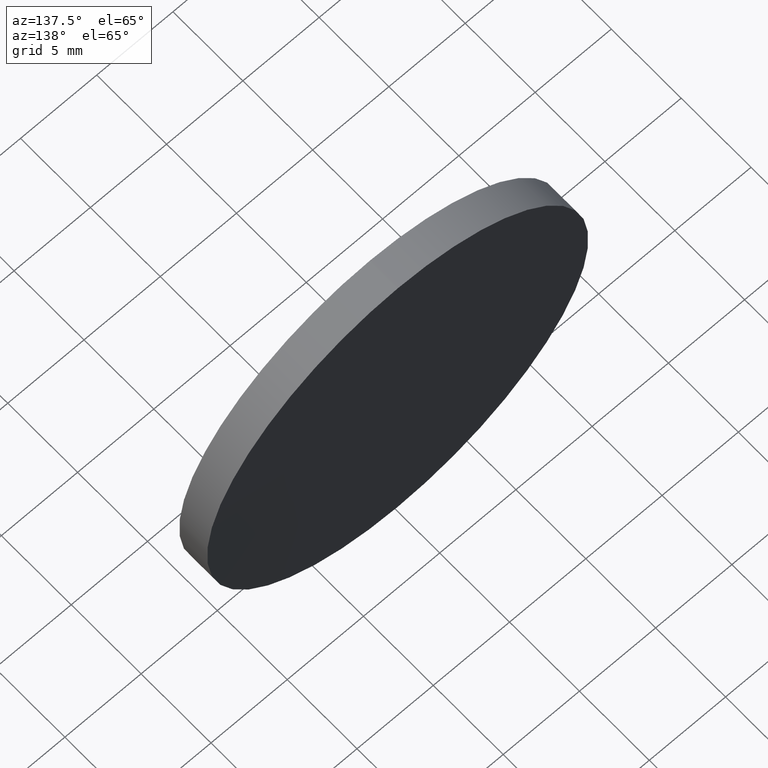
[diagram: clean part render]
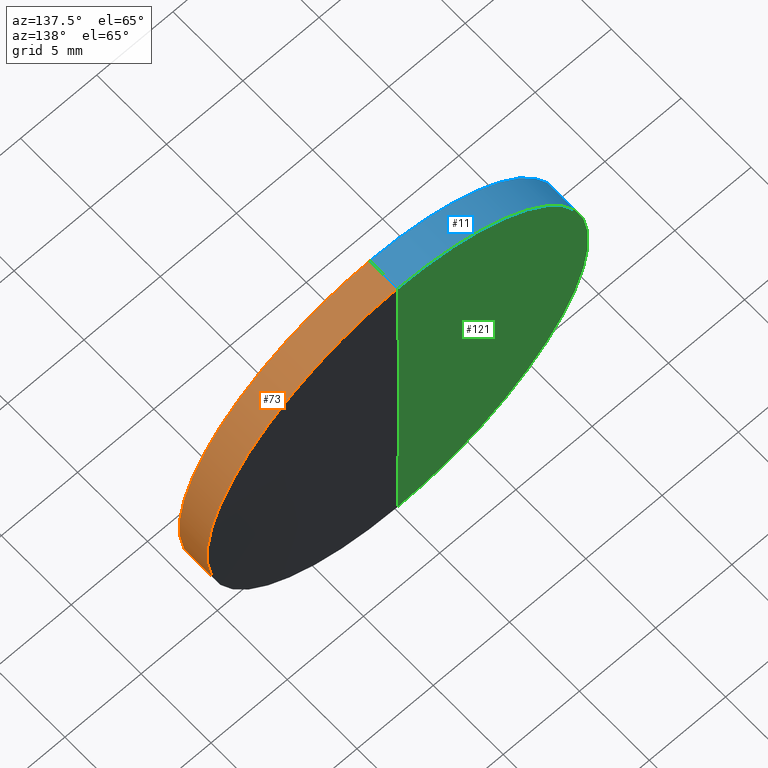
[diagram: same view with three faces highlighted in distinct colors, each labeled with its STEP entity id]
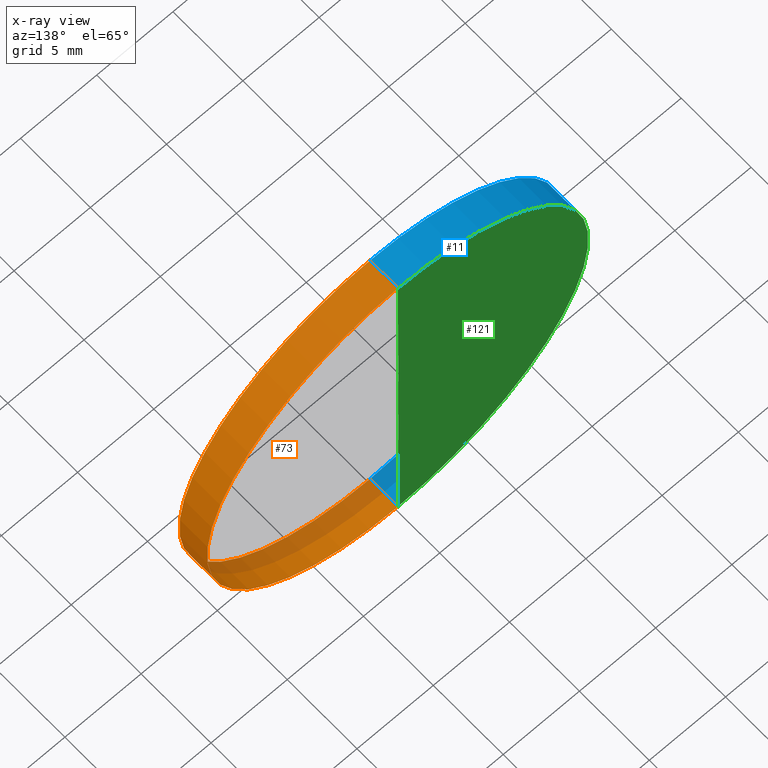
[diagram: x-ray of the same camera — body ghosted, the three highlighted faces saturated]
A machine part, auxiliary view with three faces highlighted in distinct colors.
The next image is the same camera in x-ray (body ghosted, the three faces saturated) — at least one of them is partly hidden behind the body in this view.
Their STEP definitions:

[orange] entity #73 — the highlighted cylindrical surface (partial cylindrical patch) has radius 12.5 mm, axis along (-0, 1, -0).
#1 = DIRECTION ( 'NONE',  ( 0.000000000000000000, 0.000000000000000000, 1.000000000000000000 ) ) ;
#2 = ORIENTED_EDGE ( 'NONE', *, *, #197, .F. ) ;
#6 = LINE ( 'NONE', #47, #173 ) ;
#8 = FACE_OUTER_BOUND ( 'NONE', #63, .T. ) ;
#9 = CARTESIAN_POINT ( 'NONE',  ( 0.000000000000000000, 2.000000000000000000, 12.49999999999517009 ) ) ;
#31 = CIRCLE ( 'NONE', #102, 12.50000000000000000 ) ;
#39 = DIRECTION ( 'NONE',  ( -0.000000000000000000, 1.000000000000000000, -0.000000000000000000 ) ) ;
#41 = CARTESIAN_POINT ( 'NONE',  ( 0.000000000000000000, 2.031000000000000139, 0.000000000000000000 ) ) ;
#43 = ORIENTED_EDGE ( 'NONE', *, *, #165, .F. ) ;
#47 = CARTESIAN_POINT ( 'NONE',  ( 1.530808498934191521E-15, 2.031000000000000139, -12.50000000000000000 ) ) ;
#49 = CIRCLE ( 'NONE', #201, 12.50000000000000000 ) ;
#55 = VERTEX_POINT ( 'NONE', #179 ) ;
#57 = LINE ( 'NONE', #182, #185 ) ;
#63 = EDGE_LOOP ( 'NONE', ( #74, #192, #2, #43 ) ) ;
#67 = DIRECTION ( 'NONE',  ( -0.000000000000000000, 1.000000000000000000, -0.000000000000000000 ) ) ;
#73 = ADVANCED_FACE ( 'NONE', ( #8 ), #151, .T. ) ;
#74 = ORIENTED_EDGE ( 'NONE', *, *, #172, .T. ) ;
#85 = VERTEX_POINT ( 'NONE', #147 ) ;
#102 = AXIS2_PLACEMENT_3D ( 'NONE', #125, #200, #1 ) ;
#105 = DIRECTION ( 'NONE',  ( 0.000000000000000000, 0.000000000000000000, 1.000000000000000000 ) ) ;
#108 = VERTEX_POINT ( 'NONE', #9 ) ;
#111 = EDGE_CURVE ( 'NONE', #85, #164, #6, .T. ) ;
#125 = CARTESIAN_POINT ( 'NONE',  ( 0.000000000000000000, 1.999999999999998224, 0.000000000000000000 ) ) ;
#127 = DIRECTION ( 'NONE',  ( -0.000000000000000000, 1.000000000000000000, -0.000000000000000000 ) ) ;
#143 = AXIS2_PLACEMENT_3D ( 'NONE', #41, #191, #105 ) ;
#147 = CARTESIAN_POINT ( 'NONE',  ( 1.530808498934191521E-15, -1.734723475976807094E-15, -12.50000000000000000 ) ) ;
#151 = CYLINDRICAL_SURFACE ( 'NONE', #143, 12.50000000000000000 ) ;
#159 = CARTESIAN_POINT ( 'NONE',  ( 0.000000000000000000, -1.734723475976807094E-15, 0.000000000000000000 ) ) ;
#164 = VERTEX_POINT ( 'NONE', #168 ) ;
#165 = EDGE_CURVE ( 'NONE', #55, #108, #57, .T. ) ;
#168 = CARTESIAN_POINT ( 'NONE',  ( 1.530808498933599678E-15, 2.000000000000000000, -12.49999999999517009 ) ) ;
#172 = EDGE_CURVE ( 'NONE', #55, #85, #49, .T. ) ;
#173 = VECTOR ( 'NONE', #67, 1000.000000000000000 ) ;
#179 = CARTESIAN_POINT ( 'NONE',  ( 0.000000000000000000, -1.734723475976807094E-15, 12.50000000000000000 ) ) ;
#182 = CARTESIAN_POINT ( 'NONE',  ( 0.000000000000000000, 2.031000000000000139, 12.50000000000000000 ) ) ;
#185 = VECTOR ( 'NONE', #39, 1000.000000000000000 ) ;
#188 = DIRECTION ( 'NONE',  ( 0.000000000000000000, 0.000000000000000000, 1.000000000000000000 ) ) ;
#191 = DIRECTION ( 'NONE',  ( -0.000000000000000000, 1.000000000000000000, -0.000000000000000000 ) ) ;
#192 = ORIENTED_EDGE ( 'NONE', *, *, #111, .T. ) ;
#197 = EDGE_CURVE ( 'NONE', #108, #164, #31, .T. ) ;
#200 = DIRECTION ( 'NONE',  ( -0.000000000000000000, 1.000000000000000000, -0.000000000000000000 ) ) ;
#201 = AXIS2_PLACEMENT_3D ( 'NONE', #159, #127, #188 ) ;

[blue] entity #11 — the highlighted cylindrical surface (partial cylindrical patch) has radius 12.5 mm, axis along (-0, 1, -0).
#3 = ORIENTED_EDGE ( 'NONE', *, *, #38, .T. ) ;
#4 = DIRECTION ( 'NONE',  ( 0.000000000000000000, 0.000000000000000000, 1.000000000000000000 ) ) ;
#6 = LINE ( 'NONE', #47, #173 ) ;
#9 = CARTESIAN_POINT ( 'NONE',  ( 0.000000000000000000, 2.000000000000000000, 12.49999999999517009 ) ) ;
#11 = ADVANCED_FACE ( 'NONE', ( #26 ), #120, .T. ) ;
#17 = DIRECTION ( 'NONE',  ( -0.000000000000000000, 1.000000000000000000, -0.000000000000000000 ) ) ;
#24 = CARTESIAN_POINT ( 'NONE',  ( 0.000000000000000000, -1.734723475976807094E-15, 0.000000000000000000 ) ) ;
#26 = FACE_OUTER_BOUND ( 'NONE', #54, .T. ) ;
#38 = EDGE_CURVE ( 'NONE', #85, #55, #142, .T. ) ;
#39 = DIRECTION ( 'NONE',  ( -0.000000000000000000, 1.000000000000000000, -0.000000000000000000 ) ) ;
#42 = DIRECTION ( 'NONE',  ( 0.000000000000000000, 0.000000000000000000, 1.000000000000000000 ) ) ;
#47 = CARTESIAN_POINT ( 'NONE',  ( 1.530808498934191521E-15, 2.031000000000000139, -12.50000000000000000 ) ) ;
#54 = EDGE_LOOP ( 'NONE', ( #149, #3, #81, #56 ) ) ;
#55 = VERTEX_POINT ( 'NONE', #179 ) ;
#56 = ORIENTED_EDGE ( 'NONE', *, *, #187, .F. ) ;
#57 = LINE ( 'NONE', #182, #185 ) ;
#67 = DIRECTION ( 'NONE',  ( -0.000000000000000000, 1.000000000000000000, -0.000000000000000000 ) ) ;
#80 = AXIS2_PLACEMENT_3D ( 'NONE', #144, #17, #4 ) ;
#81 = ORIENTED_EDGE ( 'NONE', *, *, #165, .T. ) ;
#84 = DIRECTION ( 'NONE',  ( -0.000000000000000000, 1.000000000000000000, -0.000000000000000000 ) ) ;
#85 = VERTEX_POINT ( 'NONE', #147 ) ;
#87 = DIRECTION ( 'NONE',  ( 0.000000000000000000, 0.000000000000000000, 1.000000000000000000 ) ) ;
#108 = VERTEX_POINT ( 'NONE', #9 ) ;
#111 = EDGE_CURVE ( 'NONE', #85, #164, #6, .T. ) ;
#117 = DIRECTION ( 'NONE',  ( -0.000000000000000000, 1.000000000000000000, -0.000000000000000000 ) ) ;
#119 = CARTESIAN_POINT ( 'NONE',  ( 0.000000000000000000, 2.031000000000000139, 0.000000000000000000 ) ) ;
#120 = CYLINDRICAL_SURFACE ( 'NONE', #193, 12.50000000000000000 ) ;
#142 = CIRCLE ( 'NONE', #155, 12.50000000000000000 ) ;
#144 = CARTESIAN_POINT ( 'NONE',  ( 0.000000000000000000, 1.999999999999998224, 0.000000000000000000 ) ) ;
#147 = CARTESIAN_POINT ( 'NONE',  ( 1.530808498934191521E-15, -1.734723475976807094E-15, -12.50000000000000000 ) ) ;
#149 = ORIENTED_EDGE ( 'NONE', *, *, #111, .F. ) ;
#155 = AXIS2_PLACEMENT_3D ( 'NONE', #24, #84, #87 ) ;
#156 = CIRCLE ( 'NONE', #80, 12.50000000000000000 ) ;
#164 = VERTEX_POINT ( 'NONE', #168 ) ;
#165 = EDGE_CURVE ( 'NONE', #55, #108, #57, .T. ) ;
#168 = CARTESIAN_POINT ( 'NONE',  ( 1.530808498933599678E-15, 2.000000000000000000, -12.49999999999517009 ) ) ;
#173 = VECTOR ( 'NONE', #67, 1000.000000000000000 ) ;
#179 = CARTESIAN_POINT ( 'NONE',  ( 0.000000000000000000, -1.734723475976807094E-15, 12.50000000000000000 ) ) ;
#182 = CARTESIAN_POINT ( 'NONE',  ( 0.000000000000000000, 2.031000000000000139, 12.50000000000000000 ) ) ;
#185 = VECTOR ( 'NONE', #39, 1000.000000000000000 ) ;
#187 = EDGE_CURVE ( 'NONE', #164, #108, #156, .T. ) ;
#193 = AXIS2_PLACEMENT_3D ( 'NONE', #119, #117, #42 ) ;

[green] entity #121 — the highlighted toroidal blend (fillet) surface has major radius 3.0459 mm and minor (blend) radius 1292 mm.
#4 = DIRECTION ( 'NONE',  ( 0.000000000000000000, 0.000000000000000000, 1.000000000000000000 ) ) ;
#5 = CARTESIAN_POINT ( 'NONE',  ( 0.000000000000000000, -1289.965409658435419, 3.045887344046879885 ) ) ;
#9 = CARTESIAN_POINT ( 'NONE',  ( 0.000000000000000000, 2.000000000000000000, 12.49999999999517009 ) ) ;
#17 = DIRECTION ( 'NONE',  ( -0.000000000000000000, 1.000000000000000000, -0.000000000000000000 ) ) ;
#21 = AXIS2_PLACEMENT_3D ( 'NONE', #90, #150, #30 ) ;
#30 = DIRECTION ( 'NONE',  ( 1.224646799147353207E-16, 0.000000000000000000, -1.000000000000000000 ) ) ;
#34 = EDGE_CURVE ( 'NONE', #164, #167, #112, .T. ) ;
#44 = DIRECTION ( 'NONE',  ( -0.000000000000000000, 1.000000000000000000, -0.000000000000000000 ) ) ;
#58 = CIRCLE ( 'NONE', #113, 1292.000000000000000 ) ;
#61 = CARTESIAN_POINT ( 'NONE',  ( 0.000000000000000000, 2.031000000000000139, 0.000000000000000000 ) ) ;
#70 = DIRECTION ( 'NONE',  ( 0.000000000000000000, 0.000000000000000000, 1.000000000000000000 ) ) ;
#72 = TOROIDAL_SURFACE ( 'NONE', #183, 3.045887344046879885, 1292.000000000000000 ) ;
#80 = AXIS2_PLACEMENT_3D ( 'NONE', #144, #17, #4 ) ;
#90 = CARTESIAN_POINT ( 'NONE',  ( 3.730136186450443837E-16, -1289.965409658435419, -3.045887344046879885 ) ) ;
#95 = EDGE_CURVE ( 'NONE', #108, #167, #58, .T. ) ;
#103 = ORIENTED_EDGE ( 'NONE', *, *, #187, .T. ) ;
#106 = EDGE_LOOP ( 'NONE', ( #180, #103, #169 ) ) ;
#108 = VERTEX_POINT ( 'NONE', #9 ) ;
#112 = CIRCLE ( 'NONE', #21, 1292.000000000000000 ) ;
#113 = AXIS2_PLACEMENT_3D ( 'NONE', #5, #148, #166 ) ;
#121 = ADVANCED_FACE ( 'NONE', ( #132 ), #72, .T. ) ;
#122 = CARTESIAN_POINT ( 'NONE',  ( 0.000000000000000000, -1289.965409658435419, 0.000000000000000000 ) ) ;
#132 = FACE_OUTER_BOUND ( 'NONE', #106, .T. ) ;
#144 = CARTESIAN_POINT ( 'NONE',  ( 0.000000000000000000, 1.999999999999998224, 0.000000000000000000 ) ) ;
#148 = DIRECTION ( 'NONE',  ( -1.000000000000000000, 0.000000000000000000, 0.000000000000000000 ) ) ;
#150 = DIRECTION ( 'NONE',  ( 1.000000000000000000, 0.000000000000000000, 1.224646799147353207E-16 ) ) ;
#156 = CIRCLE ( 'NONE', #80, 12.50000000000000000 ) ;
#164 = VERTEX_POINT ( 'NONE', #168 ) ;
#166 = DIRECTION ( 'NONE',  ( 0.000000000000000000, 0.000000000000000000, 1.000000000000000000 ) ) ;
#167 = VERTEX_POINT ( 'NONE', #61 ) ;
#168 = CARTESIAN_POINT ( 'NONE',  ( 1.530808498933599678E-15, 2.000000000000000000, -12.49999999999517009 ) ) ;
#169 = ORIENTED_EDGE ( 'NONE', *, *, #95, .T. ) ;
#180 = ORIENTED_EDGE ( 'NONE', *, *, #34, .F. ) ;
#183 = AXIS2_PLACEMENT_3D ( 'NONE', #122, #44, #70 ) ;
#187 = EDGE_CURVE ( 'NONE', #164, #108, #156, .T. ) ;